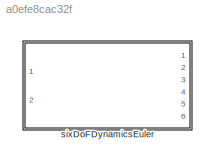
MODEL slx_a0efe8cac32f
KIND library
CONFIG AbsTol = auto
CONFIG EnableMultiTasking = off
CONFIG FixedStep = auto
CONFIG MaxStep = auto
CONFIG MinStep = auto
CONFIG RelTol = 1e-3
CONFIG SampleTimeConstraint = Unconstrained
CONFIG Solver = VariableStepAuto
CONFIG SolverName = VariableStepAuto
CONFIG StartTime = 0.0
CONFIG StopTime = 10.0
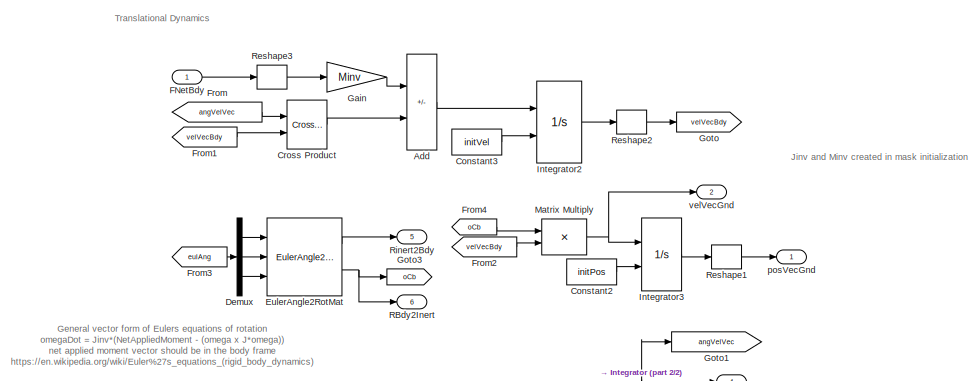
[diagram: sixDoFDynamicsEuler - part 1/2, top left region]
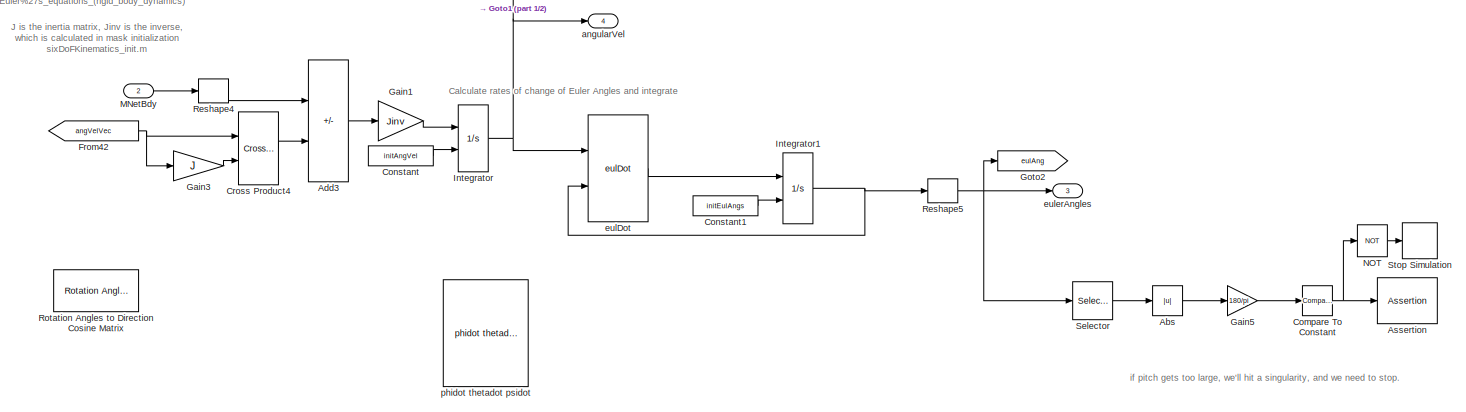
[diagram: sixDoFDynamicsEuler - part 2/2, full width, bottom band]
BLOCK [SubSystem] sixDoFDynamicsEuler
  Ports = [2, 6]
  RequestExecContextInheritance = off
  VariantControl = (default)
BLOCK [Abs] sixDoFDynamicsEuler/Abs
  Commented = on
  SaturateOnIntegerOverflow = off
BLOCK [Sum] sixDoFDynamicsEuler/Add
  IconShape = rectangular
  Inputs = +-
  Ports = [2, 1]
BLOCK [Sum] sixDoFDynamicsEuler/Add3
  IconShape = rectangular
  Inputs = +-
  Ports = [2, 1]
BLOCK [Assertion] sixDoFDynamicsEuler/Assertion
  AssertionFailFcn = fprintf(2,"Exiting because pitch exceeded 85 degrees.\nThrowing Assertion Warning...\n")
  Commented = on
  StopWhenAssertionFail = off
BLOCK [Reference] sixDoFDynamicsEuler/Compare To Constant  REF=simulink/Logic and Bit
Operations/Compare
To Constant
  Commented = on
  Ports = [1, 1]
  SourceBlock = simulink/Logic and Bit\nOperations/Compare\nTo Constant
  SourceProductBaseCode = SL
  SourceType = Compare To Constant
BLOCK [Constant] sixDoFDynamicsEuler/Constant
  Value = initAngVel
BLOCK [Constant] sixDoFDynamicsEuler/Constant1
  Value = initEulAngs
BLOCK [Constant] sixDoFDynamicsEuler/Constant2
  Value = initPos
BLOCK [Constant] sixDoFDynamicsEuler/Constant3
  Value = initVel
BLOCK [Reference] sixDoFDynamicsEuler/Cross Product  REF=vrlib/Utilities/Cross Product
  Ports = [2, 1]
  SourceBlock = vrlib/Utilities/Cross Product
  SourceProductBaseCode = SL
  SourceType = Cross Product
BLOCK [Reference] sixDoFDynamicsEuler/Cross Product4  REF=vrlib/Utilities/Cross Product
  Ports = [2, 1]
  SourceBlock = vrlib/Utilities/Cross Product
  SourceProductBaseCode = SL
  SourceType = Cross Product
BLOCK [Demux] sixDoFDynamicsEuler/Demux
  Outputs = 3
  Ports = [1, 3]
BLOCK [Reference] sixDoFDynamicsEuler/EulerAngle2RotMat  REF=eulAng2RotMat_ul/EulerAngle2RotMat
  Ports = [3, 2]
  SourceBlock = eulAng2RotMat_ul/EulerAngle2RotMat
  SourceType = SubSystem
BLOCK [Inport] sixDoFDynamicsEuler/FNetBdy
BLOCK [From] sixDoFDynamicsEuler/From
  GotoTag = angVelVec
BLOCK [From] sixDoFDynamicsEuler/From1
  GotoTag = velVecBdy
BLOCK [From] sixDoFDynamicsEuler/From2
  GotoTag = velVecBdy
BLOCK [From] sixDoFDynamicsEuler/From3
  GotoTag = eulAng
BLOCK [From] sixDoFDynamicsEuler/From4
  GotoTag = oCb
BLOCK [From] sixDoFDynamicsEuler/From42
  GotoTag = angVelVec
BLOCK [Gain] sixDoFDynamicsEuler/Gain
  Gain = Minv
  Multiplication = Matrix(K*u)
BLOCK [Gain] sixDoFDynamicsEuler/Gain1
  Gain = Jinv
  Multiplication = Matrix(K*u)
BLOCK [Gain] sixDoFDynamicsEuler/Gain3
  Gain = J
  Multiplication = Matrix(K*u)
BLOCK [Gain] sixDoFDynamicsEuler/Gain5
  Commented = on
  Gain = 180/pi
BLOCK [Goto] sixDoFDynamicsEuler/Goto
  GotoTag = velVecBdy
BLOCK [Goto] sixDoFDynamicsEuler/Goto1
  GotoTag = angVelVec
BLOCK [Goto] sixDoFDynamicsEuler/Goto2
  GotoTag = eulAng
BLOCK [Goto] sixDoFDynamicsEuler/Goto3
  GotoTag = oCb
BLOCK [Integrator] sixDoFDynamicsEuler/Integrator
  InitialCondition = initAngRates
  InitialConditionSource = external
  Ports = [2, 1]
BLOCK [Integrator] sixDoFDynamicsEuler/Integrator1
  InitialCondition = initEulAngs
  InitialConditionSource = external
  Ports = [2, 1]
BLOCK [Integrator] sixDoFDynamicsEuler/Integrator2
  InitialCondition = initVel
  InitialConditionSource = external
  Ports = [2, 1]
BLOCK [Integrator] sixDoFDynamicsEuler/Integrator3
  InitialCondition = initPos
  InitialConditionSource = external
  Ports = [2, 1]
BLOCK [Inport] sixDoFDynamicsEuler/MNetBdy
  Port = 2
BLOCK [Product] sixDoFDynamicsEuler/Matrix Multiply
  Multiplication = Matrix(*)
  Ports = [2, 1]
BLOCK [Logic] sixDoFDynamicsEuler/NOT
  AllPortsSameDT = off
  Commented = on
  IconShape = distinctive
  Operator = NOT
  OutDataTypeStr = boolean
  Ports = [1, 1]
BLOCK [Outport] sixDoFDynamicsEuler/RBdy2Inert
  Port = 6
  VectorParamsAs1DForOutWhenUnconnected = off
BLOCK [Reshape] sixDoFDynamicsEuler/Reshape1
  OutputDimensionality = Column vector (2-D)
  Ports = [1, 1]
BLOCK [Reshape] sixDoFDynamicsEuler/Reshape2
  OutputDimensionality = Column vector (2-D)
  Ports = [1, 1]
BLOCK [Reshape] sixDoFDynamicsEuler/Reshape3
  OutputDimensionality = Column vector (2-D)
  Ports = [1, 1]
BLOCK [Reshape] sixDoFDynamicsEuler/Reshape4
  OutputDimensionality = Column vector (2-D)
  Ports = [1, 1]
BLOCK [Reshape] sixDoFDynamicsEuler/Reshape5
  OutputDimensionality = Column vector (2-D)
  Ports = [1, 1]
BLOCK [Outport] sixDoFDynamicsEuler/Rinert2Bdy
  Port = 5
  VectorParamsAs1DForOutWhenUnconnected = off
BLOCK [Reference] sixDoFDynamicsEuler/Rotation Angles to Direction Cosine Matrix  REF=sharedtransform/Rotation Angles to
Direction Cosine Matrix
  AttributesFormatString = Rotation Order: %<rotationOrder>
  Commented = on
  Ports = [1, 1]
  SourceBlock = sharedtransform/Rotation Angles to\nDirection Cosine Matrix
  SourceProductBaseCode = AE,PW,MT,VE,VP
  SourceType = Ang2DCM
BLOCK [Selector] sixDoFDynamicsEuler/Selector
  Commented = on
  IndexOptions = Index vector (dialog)
  Indices = 2
  InputPortWidth = 3
  OutputSizes = 1
  Ports = [1, 1]
BLOCK [Stop] sixDoFDynamicsEuler/Stop Simulation
  Commented = on
BLOCK [Outport] sixDoFDynamicsEuler/angularVel
  Port = 4
  VectorParamsAs1DForOutWhenUnconnected = off
BLOCK [Reference] sixDoFDynamicsEuler/eulDot  REF=eulDot/eulDot
  Ports = [2, 1]
  SourceBlock = eulDot/eulDot
  SourceType = SubSystem
BLOCK [Outport] sixDoFDynamicsEuler/eulerAngles
  Port = 3
  VectorParamsAs1DForOutWhenUnconnected = off
BLOCK [Reference] sixDoFDynamicsEuler/phidot thetadot psidot  REF=shared6dofsys/DCM & Euler Angles (Euler)/phidot  (lib defined in slx_91fbb8bad28b)
thetadot
psidot
  Commented = on
  Ports = [2, 1]
  SourceBlock = shared6dofsys/DCM & Euler Angles (Euler)/phidot\nthetadot\npsidot
  SourceProductBaseCode = AE,PW,MT,VE,VP
  SourceType = SubSystem
BLOCK [Outport] sixDoFDynamicsEuler/posVecGnd
  VectorParamsAs1DForOutWhenUnconnected = off
BLOCK [Outport] sixDoFDynamicsEuler/velVecGnd
  Port = 2
  VectorParamsAs1DForOutWhenUnconnected = off
ANNOTATION sixDoFDynamicsEuler: Jinv and Minv created in mask initialization
ANNOTATION sixDoFDynamicsEuler: Calculate rates of change of Euler Angles and integrate
ANNOTATION sixDoFDynamicsEuler: General vector form of Eulers equations of rotation omegaDot = Jinv*(NetAppliedMoment - (omega x J*omega)) net applied moment vector should be in the body frame https://en.wikipedia.org/wiki/Euler%27s_equations_(rigid_body_dynamics)
ANNOTATION sixDoFDynamicsEuler: J is the inertia matrix, Jinv is the inverse, which is calculated in mask initialization sixDoFKinematics_init.m
ANNOTATION sixDoFDynamicsEuler: Translational Dynamics
ANNOTATION sixDoFDynamicsEuler: if pitch gets too large, we'll hit a singularity, and we need to stop.
LINE sixDoFDynamicsEuler/Abs:1 -> sixDoFDynamicsEuler/Gain5:1
LINE sixDoFDynamicsEuler/Add3:1 -> sixDoFDynamicsEuler/Gain1:1
LINE sixDoFDynamicsEuler/Add:1 -> sixDoFDynamicsEuler/Integrator2:1
NET sixDoFDynamicsEuler/Compare To Constant:1 -> sixDoFDynamicsEuler/Assertion:1, sixDoFDynamicsEuler/NOT:1
LINE sixDoFDynamicsEuler/Constant1:1 -> sixDoFDynamicsEuler/Integrator1:2
LINE sixDoFDynamicsEuler/Constant2:1 -> sixDoFDynamicsEuler/Integrator3:2
LINE sixDoFDynamicsEuler/Constant3:1 -> sixDoFDynamicsEuler/Integrator2:2
LINE sixDoFDynamicsEuler/Constant:1 -> sixDoFDynamicsEuler/Integrator:2
LINE sixDoFDynamicsEuler/Cross Product4:1 -> sixDoFDynamicsEuler/Add3:2
LINE sixDoFDynamicsEuler/Cross Product:1 -> sixDoFDynamicsEuler/Add:2
LINE sixDoFDynamicsEuler/Demux:1 -> sixDoFDynamicsEuler/EulerAngle2RotMat:1
LINE sixDoFDynamicsEuler/Demux:2 -> sixDoFDynamicsEuler/EulerAngle2RotMat:2
LINE sixDoFDynamicsEuler/Demux:3 -> sixDoFDynamicsEuler/EulerAngle2RotMat:3
LINE sixDoFDynamicsEuler/EulerAngle2RotMat:1 -> sixDoFDynamicsEuler/Rinert2Bdy:1
NET sixDoFDynamicsEuler/EulerAngle2RotMat:2 -> sixDoFDynamicsEuler/Goto3:1, sixDoFDynamicsEuler/RBdy2Inert:1
LINE sixDoFDynamicsEuler/FNetBdy:1 -> sixDoFDynamicsEuler/Reshape3:1
LINE sixDoFDynamicsEuler/From1:1 -> sixDoFDynamicsEuler/Cross Product:2
LINE sixDoFDynamicsEuler/From2:1 -> sixDoFDynamicsEuler/Matrix Multiply:2
LINE sixDoFDynamicsEuler/From3:1 -> sixDoFDynamicsEuler/Demux:1
NET sixDoFDynamicsEuler/From42:1 -> sixDoFDynamicsEuler/Cross Product4:1, sixDoFDynamicsEuler/Gain3:1
LINE sixDoFDynamicsEuler/From4:1 -> sixDoFDynamicsEuler/Matrix Multiply:1
LINE sixDoFDynamicsEuler/From:1 -> sixDoFDynamicsEuler/Cross Product:1
LINE sixDoFDynamicsEuler/Gain1:1 -> sixDoFDynamicsEuler/Integrator:1
LINE sixDoFDynamicsEuler/Gain3:1 -> sixDoFDynamicsEuler/Cross Product4:2
LINE sixDoFDynamicsEuler/Gain5:1 -> sixDoFDynamicsEuler/Compare To Constant:1
LINE sixDoFDynamicsEuler/Gain:1 -> sixDoFDynamicsEuler/Add:1
NET sixDoFDynamicsEuler/Integrator1:1 -> sixDoFDynamicsEuler/Reshape5:1, sixDoFDynamicsEuler/eulDot:2
LINE sixDoFDynamicsEuler/Integrator2:1 -> sixDoFDynamicsEuler/Reshape2:1
LINE sixDoFDynamicsEuler/Integrator3:1 -> sixDoFDynamicsEuler/Reshape1:1
NET sixDoFDynamicsEuler/Integrator:1 -> sixDoFDynamicsEuler/Goto1:1, sixDoFDynamicsEuler/angularVel:1, sixDoFDynamicsEuler/eulDot:1
LINE sixDoFDynamicsEuler/MNetBdy:1 -> sixDoFDynamicsEuler/Reshape4:1
NET sixDoFDynamicsEuler/Matrix Multiply:1 -> sixDoFDynamicsEuler/Integrator3:1, sixDoFDynamicsEuler/velVecGnd:1
LINE sixDoFDynamicsEuler/NOT:1 -> sixDoFDynamicsEuler/Stop Simulation:1
LINE sixDoFDynamicsEuler/Reshape1:1 -> sixDoFDynamicsEuler/posVecGnd:1
LINE sixDoFDynamicsEuler/Reshape2:1 -> sixDoFDynamicsEuler/Goto:1
LINE sixDoFDynamicsEuler/Reshape3:1 -> sixDoFDynamicsEuler/Gain:1
LINE sixDoFDynamicsEuler/Reshape4:1 -> sixDoFDynamicsEuler/Add3:1
NET sixDoFDynamicsEuler/Reshape5:1 -> sixDoFDynamicsEuler/Goto2:1, sixDoFDynamicsEuler/Selector:1, sixDoFDynamicsEuler/eulerAngles:1
LINE sixDoFDynamicsEuler/Selector:1 -> sixDoFDynamicsEuler/Abs:1
LINE sixDoFDynamicsEuler/eulDot:1 -> sixDoFDynamicsEuler/Integrator1:1
note: NET lines group one-source signal fan-out (src -> all destinations, sorted); 1:1 wires keep LINE
